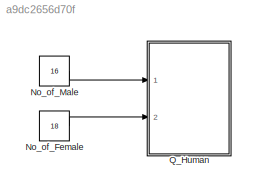
MODEL slx_a9dc2656d70f
KIND model
CONFIG AbsTol = auto
CONFIG EnableMultiTasking = on
CONFIG FixedStep = auto
CONFIG MaxStep = auto
CONFIG MinStep = auto
CONFIG RelTol = 1e-3
CONFIG SampleTimeConstraint = Unconstrained
CONFIG Solver = VariableStepAuto
CONFIG SolverName = VariableStepAuto
CONFIG StartTime = 0.0
CONFIG StopTime = 10.0
BLOCK [Constant] No_of_Female
  Value = 18
BLOCK [Constant] No_of_Male
  Value = 16
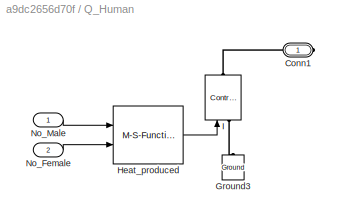
BLOCK [SubSystem] Q_Human
  Ports = [2, 0, 0, 0, 0, 0, 1]
  RequestExecContextInheritance = off
BLOCK [PMIOPort] Q_Human/Conn1
  Side = Right
BLOCK [Reference] Q_Human/Ground3  REF=powerlib/Elements/Ground
  Ports = [0, 0, 0, 0, 0, 1]
  SourceBlock = powerlib/Elements/Ground
  SourceProductBaseCode = PS
  SourceProductName = Simscape Power Systems
  SourceType = Ground
BLOCK [M-S-Function] Q_Human/Heat_produced
  FunctionName = human
  Ports = [2, 1]
BLOCK [Reference] Q_Human/I  REF=powerlib/Electrical
Sources/Controlled Current Source
  Ports = [1, 0, 0, 0, 0, 1, 1]
  SourceBlock = powerlib/Electrical\nSources/Controlled Current Source
  SourceProductBaseCode = PS
  SourceProductName = Simscape Power Systems
  SourceType = Controlled Current Source
BLOCK [Inport] Q_Human/No_Female
  IconDisplay = Port number
  Port = 2
BLOCK [Inport] Q_Human/No_Male 
  IconDisplay = Port number
LINE No_of_Female:1 -> Q_Human:2
LINE No_of_Male:1 -> Q_Human:1
LINE Q_Human/Heat_produced:1 -> Q_Human/I:1
LINE Q_Human/No_Female:1 -> Q_Human/Heat_produced:2
LINE Q_Human/No_Male :1 -> Q_Human/Heat_produced:1
PLINE Q_Human/Conn1:RConn1 -- Q_Human/I:RConn1
PLINE Q_Human/Ground3:LConn1 -- Q_Human/I:LConn1
